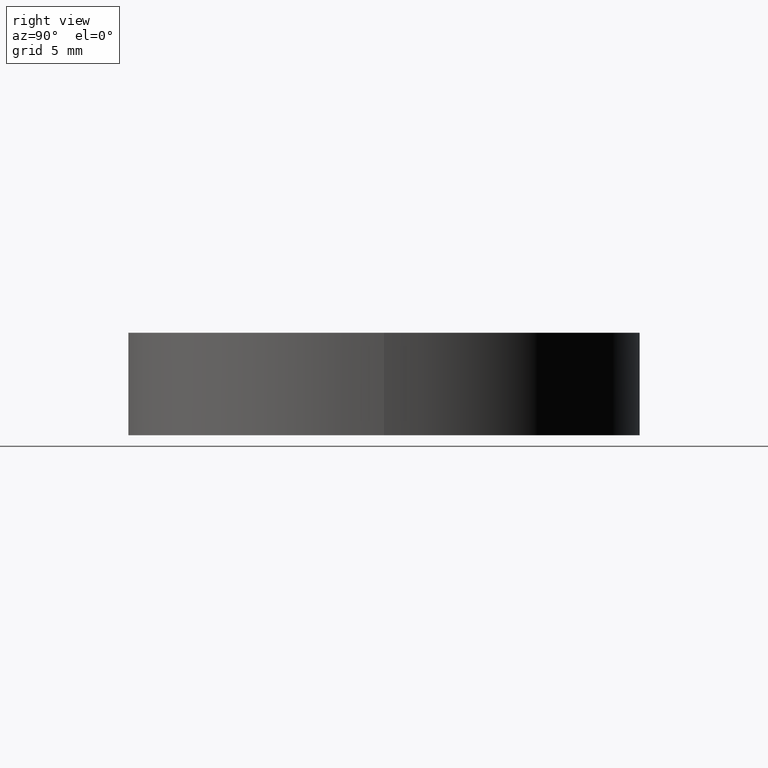
[diagram: clean part render]
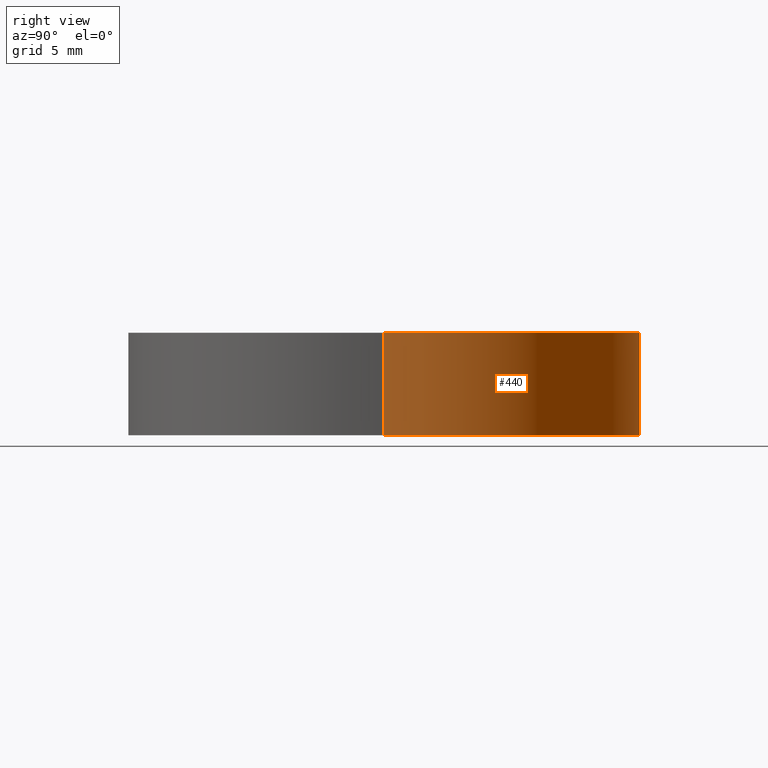
[diagram: same view with one face highlighted and labeled with its STEP entity id]
A machine part, right view. The second image highlights one B-rep face of the part: STEP entity #440.
In plain terms, the highlighted cylindrical surface (partial cylindrical patch) has radius 12.5 mm, axis along (-0, -0, -1).
Its self-contained STEP definition (entity closure, byte-faithful):
#1 = CARTESIAN_POINT ( 'NONE',  ( 0.0000000000000000000, 0.0000000000000000000, -3.685474932512929200 ) ) ;
#13 = DIRECTION ( 'NONE',  ( -1.000000000000000000, 0.0000000000000000000, 0.0000000000000000000 ) ) ;
#16 = EDGE_CURVE ( 'NONE', #549, #542, #232, .T. ) ;
#43 = DIRECTION ( 'NONE',  ( -0.0000000000000000000, -0.0000000000000000000, -1.000000000000000000 ) ) ;
#67 = VECTOR ( 'NONE', #304, 1000.000000000000000 ) ;
#70 = EDGE_LOOP ( 'NONE', ( #279, #303, #628, #422 ) ) ;
#81 = CARTESIAN_POINT ( 'NONE',  ( 0.0000000000000000000, 0.0000000000000000000, -0.6189999999999997700 ) ) ;
#113 = VERTEX_POINT ( 'NONE', #214 ) ;
#118 = EDGE_CURVE ( 'NONE', #113, #549, #511, .T. ) ;
#144 = LINE ( 'NONE', #409, #606 ) ;
#179 = DIRECTION ( 'NONE',  ( -1.000000000000000000, 0.0000000000000000000, 0.0000000000000000000 ) ) ;
#214 = CARTESIAN_POINT ( 'NONE',  ( -12.49999999999999800, 0.0000000000000000000, 4.380999999999999300 ) ) ;
#220 = CARTESIAN_POINT ( 'NONE',  ( 12.50000000000000000, 1.530808498934191500E-015, -0.6189999999999997700 ) ) ;
#231 = CIRCLE ( 'NONE', #558, 12.50000000000000000 ) ;
#232 = LINE ( 'NONE', #647, #67 ) ;
#242 = FACE_OUTER_BOUND ( 'NONE', #70, .T. ) ;
#279 = ORIENTED_EDGE ( 'NONE', *, *, #118, .T. ) ;
#293 = DIRECTION ( 'NONE',  ( -0.0000000000000000000, -0.0000000000000000000, -1.000000000000000000 ) ) ;
#303 = ORIENTED_EDGE ( 'NONE', *, *, #16, .T. ) ;
#304 = DIRECTION ( 'NONE',  ( -0.0000000000000000000, -0.0000000000000000000, -1.000000000000000000 ) ) ;
#318 = DIRECTION ( 'NONE',  ( -1.000000000000000000, 0.0000000000000000000, 0.0000000000000000000 ) ) ;
#328 = DIRECTION ( 'NONE',  ( -0.0000000000000000000, -0.0000000000000000000, -1.000000000000000000 ) ) ;
#332 = AXIS2_PLACEMENT_3D ( 'NONE', #1, #328, #179 ) ;
#409 = CARTESIAN_POINT ( 'NONE',  ( -12.50000000000000000, 0.0000000000000000000, -3.685474932512929200 ) ) ;
#422 = ORIENTED_EDGE ( 'NONE', *, *, #723, .F. ) ;
#440 = ADVANCED_FACE ( 'NONE', ( #242 ), #671, .T. ) ;
#441 = CARTESIAN_POINT ( 'NONE',  ( 12.49999999999999800, 1.530808498934191300E-015, 4.380999999999999300 ) ) ;
#499 = AXIS2_PLACEMENT_3D ( 'NONE', #707, #43, #318 ) ;
#511 = CIRCLE ( 'NONE', #499, 12.49999999999999800 ) ;
#519 = CARTESIAN_POINT ( 'NONE',  ( -12.50000000000000000, 0.0000000000000000000, -0.6189999999999997700 ) ) ;
#542 = VERTEX_POINT ( 'NONE', #220 ) ;
#549 = VERTEX_POINT ( 'NONE', #441 ) ;
#556 = VERTEX_POINT ( 'NONE', #519 ) ;
#558 = AXIS2_PLACEMENT_3D ( 'NONE', #81, #622, #13 ) ;
#606 = VECTOR ( 'NONE', #293, 1000.000000000000000 ) ;
#620 = EDGE_CURVE ( 'NONE', #556, #542, #231, .T. ) ;
#622 = DIRECTION ( 'NONE',  ( -0.0000000000000000000, -0.0000000000000000000, -1.000000000000000000 ) ) ;
#628 = ORIENTED_EDGE ( 'NONE', *, *, #620, .F. ) ;
#647 = CARTESIAN_POINT ( 'NONE',  ( 12.50000000000000000, 1.530808498934191500E-015, -3.685474932512929200 ) ) ;
#671 = CYLINDRICAL_SURFACE ( 'NONE', #332, 12.50000000000000000 ) ;
#707 = CARTESIAN_POINT ( 'NONE',  ( 0.0000000000000000000, 0.0000000000000000000, 4.380999999999999300 ) ) ;
#723 = EDGE_CURVE ( 'NONE', #113, #556, #144, .T. ) ;